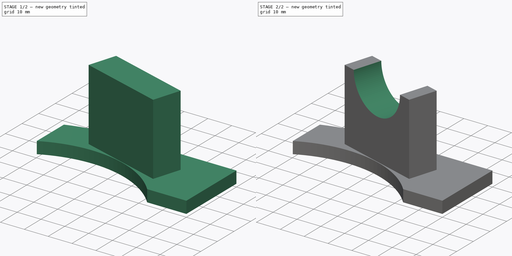
[diagram: build sequence overview — one tinted view per stage of 2, left to right]
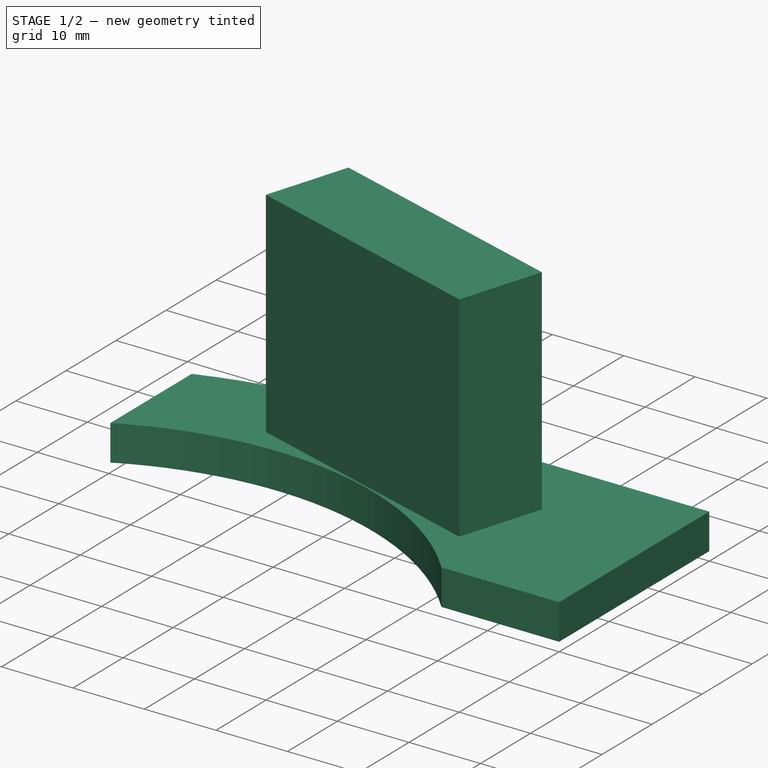
[diagram: stage 1 of 2 — iso view after this stage's code; geometry added in this stage tinted green]
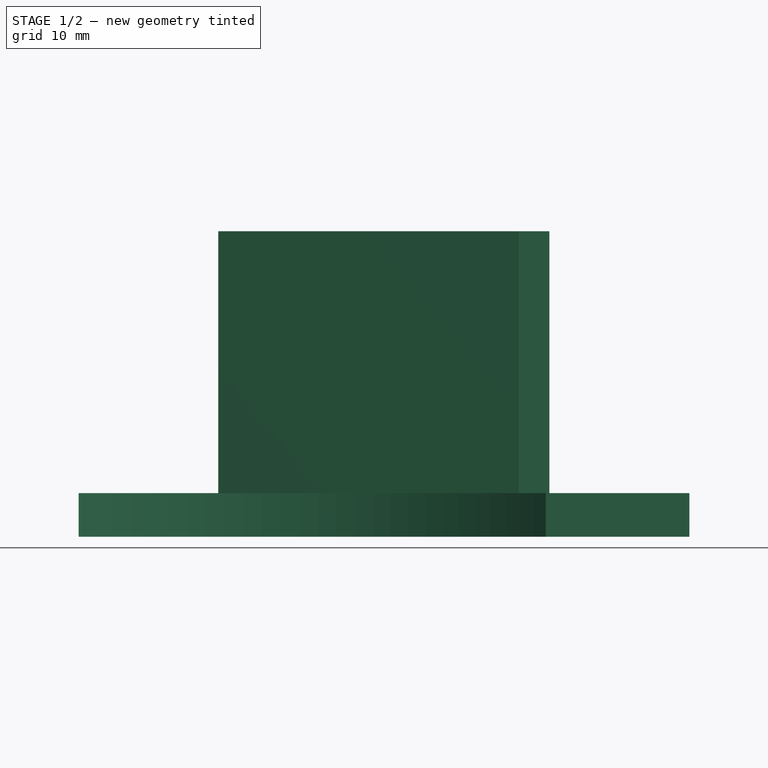
[diagram: stage 1 of 2 — front view after this stage's code; geometry added in this stage tinted green]
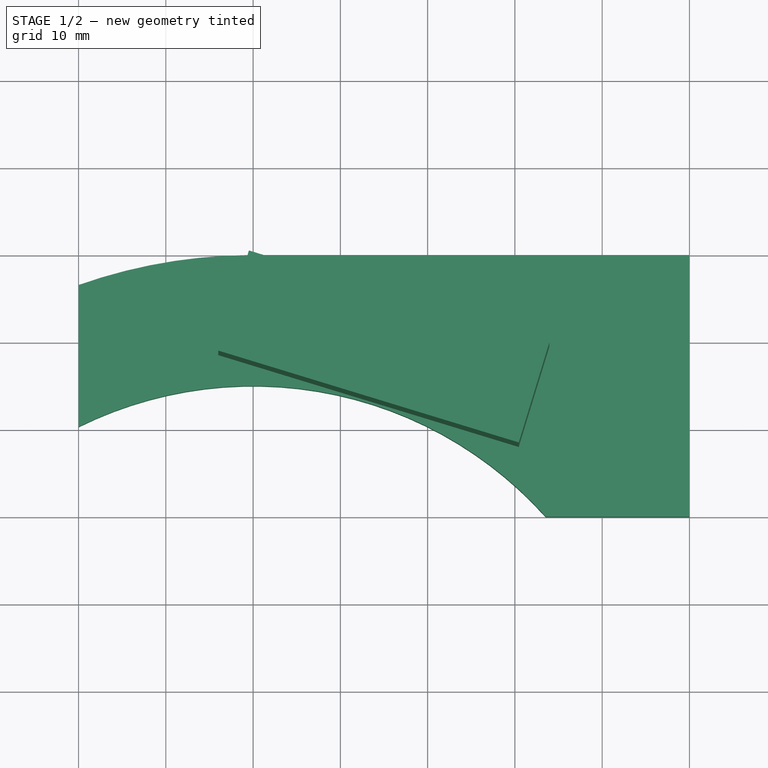
[diagram: stage 1 of 2 — top view after this stage's code; geometry added in this stage tinted green]
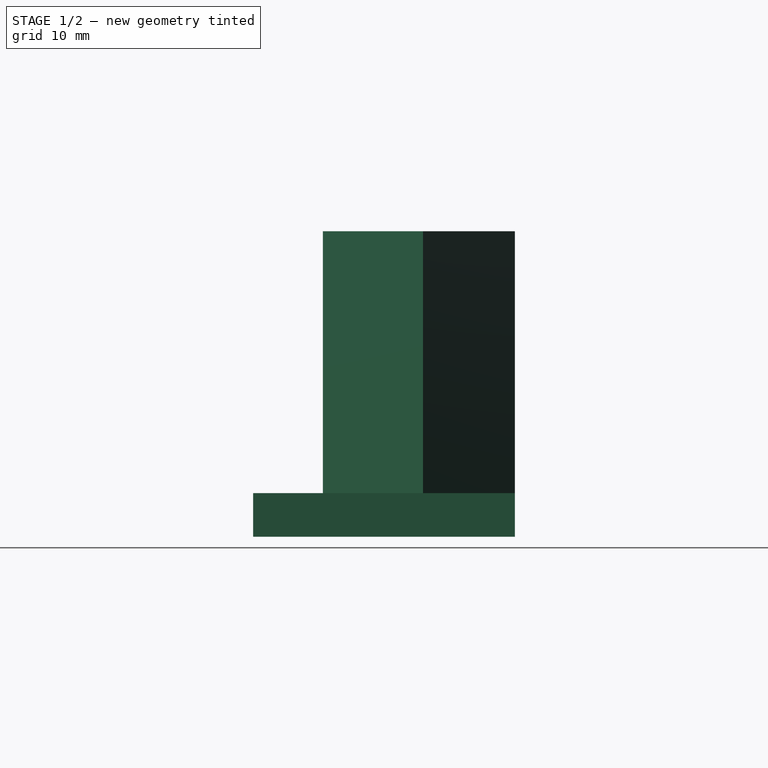
[diagram: stage 1 of 2 — right view after this stage's code; geometry added in this stage tinted green]
FCSTD DOCUMENT  (FreeCAD 0.16R)
Label: Guide1
License: All rights reserved
LicenseURL: http://en.wikipedia.org/wiki/All_rights_reserved
objects: Sketcher::SketchObject×3, PartDesign::Pad×2, PartDesign::Pocket×1
note: 9 computed .brp shape members not serialized (recipe doc carries the construction recipe); baked Part::Feature solids carry a one-line shape summary decoded from their .brp

FEATURE [Sketcher::SketchObject] Sketch
  sketch-geometry (10):
    g0: LineSegment [constr] StartX=0 StartY=0 StartZ=0 EndX=43.8558 EndY=143.446 EndZ=0
    g1: Circle [constr] CenterX=0 CenterY=0 CenterZ=0 NormalX=0 NormalY=0 NormalZ=1 Radius=55
    g2: LineSegment [constr] StartX=0 StartY=55 StartZ=0 EndX=150 EndY=55 EndZ=0
    g3: LineSegment StartX=33.541 StartY=30 StartZ=0 EndX=50 EndY=30 EndZ=0
    g4: Circle [constr] CenterX=0 CenterY=0 CenterZ=0 NormalX=0 NormalY=0 NormalZ=1 Radius=35.4
    g5: ArcOfCircle CenterX=0 CenterY=0 CenterZ=0 NormalX=0 NormalY=0 NormalZ=1 Radius=60 StartAngle=1.5708 EndAngle=1.91063
    g6: ArcOfCircle CenterX=0 CenterY=0 CenterZ=0 NormalX=0 NormalY=0 NormalZ=1 Radius=45 StartAngle=0.729728 EndAngle=2.03135
    g7: LineSegment StartX=50 StartY=30 StartZ=0 EndX=50 EndY=60 EndZ=0
    g8: LineSegment StartX=0 StartY=60 StartZ=0 EndX=50 EndY=60 EndZ=0
    g9: LineSegment StartX=-20 StartY=40.3113 StartZ=0 EndX=-20 EndY=56.5685 EndZ=0
  constraints (30):
    c: Coincident(g0,g-1)
    c: Distance(g0) = 150
    c: Angle(g0) = 1.27409
    c: Coincident(g1,g-1)
    c: Radius(g1) = 55
    c: Horizontal(g2)
    c: Horizontal(g3)
    c: Radius(g4) = 35.4
    c: Coincident(g4,g-1)
    c: Coincident(g5,g-1)
    c: Radius(g5) = 60
    c: Coincident(g6,g-1)
    c: Radius(g6) = 45
    c: Vertical(g7)
    c: PointOnObject(g8,g5)
    c: Coincident(g8,g7)
    c: Horizontal(g8)
    c: Coincident(g7,g3)
    c: Coincident(g6,g3)
    c: Coincident(g8,g5)
    c: Coincident(g9,g6)
    c: Coincident(g9,g5)
    c: Vertical(g9)
    c: DistanceX(g5,g-1) = 20
    c: DistanceX(g7) = 50
    c: Distance(g7) = 30
    c: PointOnObject(g5,g-2)
    c: Distance(g2) = 150
    c: PointOnObject(g2,g1)
    c: PointOnObject(g2,g-2)
FEATURE [PartDesign::Pad] Pad
  Length = 5
  Length2 = 100
  Sketch = -> Sketch
  Type = 0
FEATURE [Sketcher::SketchObject] Sketch001
  ExternalGeometry = -> [Pad]
  Placement = pos=(0,0,5) rot=(0,0,1;0rad)
  Support = -> Pad [Face8]
  sketch-geometry (5):
    g0: LineSegment [constr] StartX=0 StartY=0 StartZ=0 EndX=43.8558 EndY=143.446 EndZ=0
    g1: LineSegment StartX=-0.478611 StartY=60 StartZ=0 EndX=33.9484 EndY=49.4746 EndZ=0
    g2: LineSegment StartX=33.9484 StartY=49.4746 StartZ=0 EndX=30.4399 EndY=37.999 EndZ=0
    g3: LineSegment StartX=30.4399 StartY=37.999 StartZ=0 EndX=-3.98707 EndY=48.5243 EndZ=0
    g4: LineSegment StartX=-3.98707 StartY=48.5243 StartZ=0 EndX=-0.478611 EndY=60 EndZ=0
  constraints (15):
    c: Coincident(g0,g-1)
    c: Distance(g0) = 150
    c: Angle(g0) = 1.27409
    c: Coincident(g1,g2)
    c: Coincident(g2,g3)
    c: Coincident(g3,g4)
    c: Coincident(g4,g1)
    c: Perpendicular(g0,g3)
    c: Perpendicular(g0,g1)
    c: Parallel(g4,g0)
    c: Parallel(g2,g0)
    c: Symmetric(g2,g3,g0)
    c: Distance(g2) = 12
    c: PointOnObject(g1,g-3)
    c: Distance(g1) = 36
FEATURE [PartDesign::Pad] Pad001
  Length = 30
  Length2 = 100
  Sketch = -> Sketch001
  Type = 0
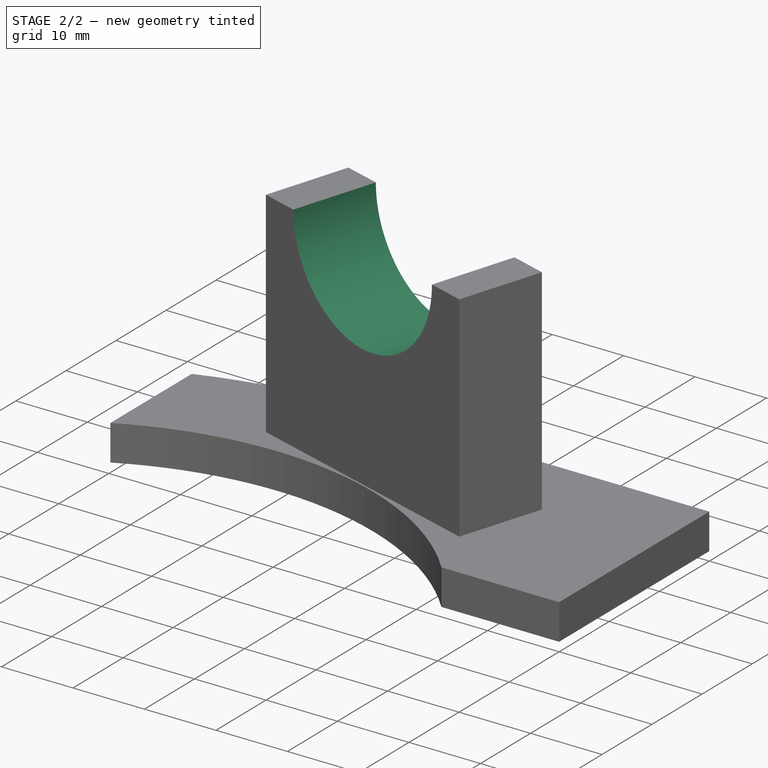
[diagram: stage 2 of 2 — iso view after this stage's code; geometry added in this stage tinted green]
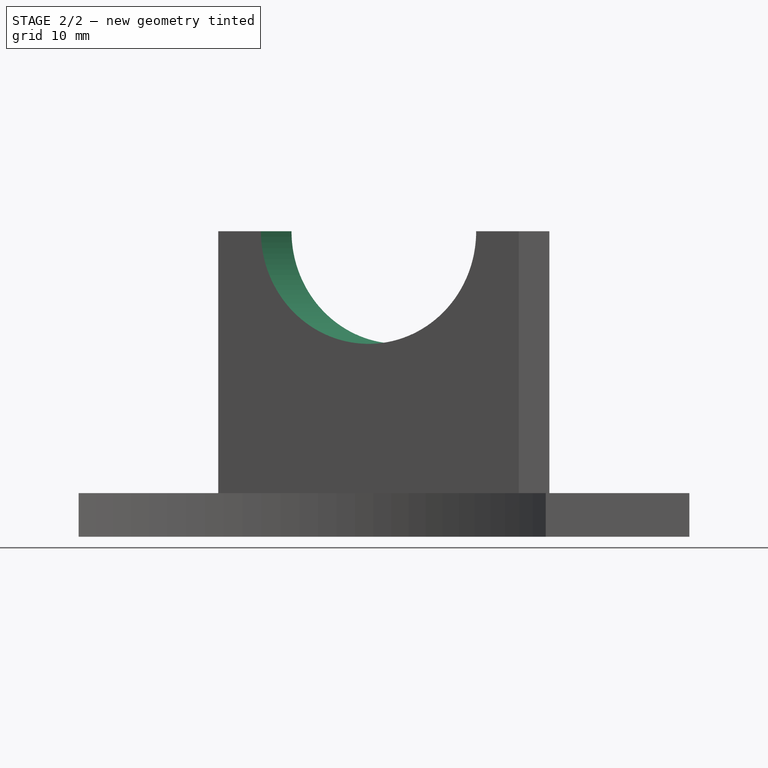
[diagram: stage 2 of 2 — front view after this stage's code; geometry added in this stage tinted green]
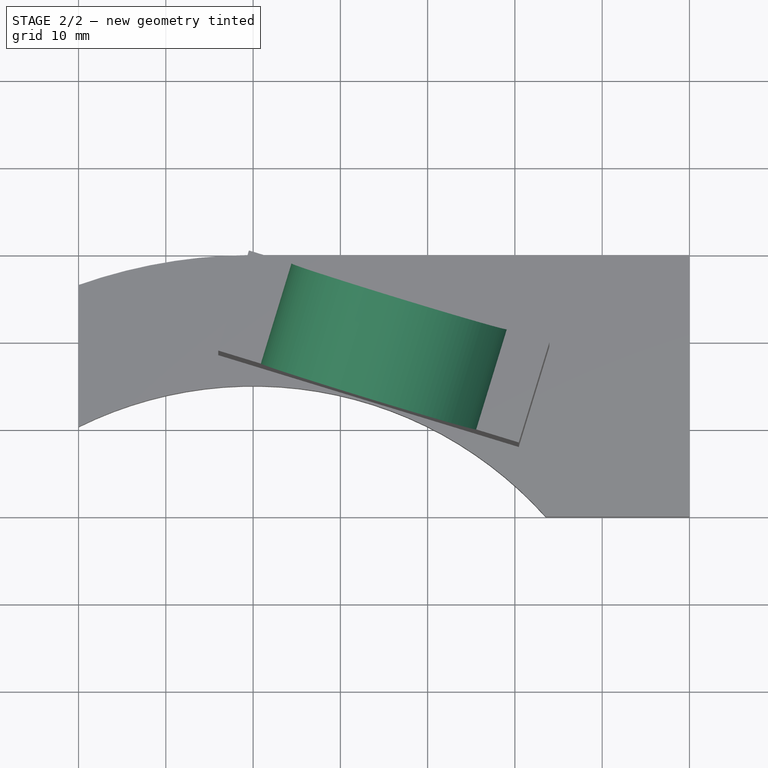
[diagram: stage 2 of 2 — top view after this stage's code; geometry added in this stage tinted green]
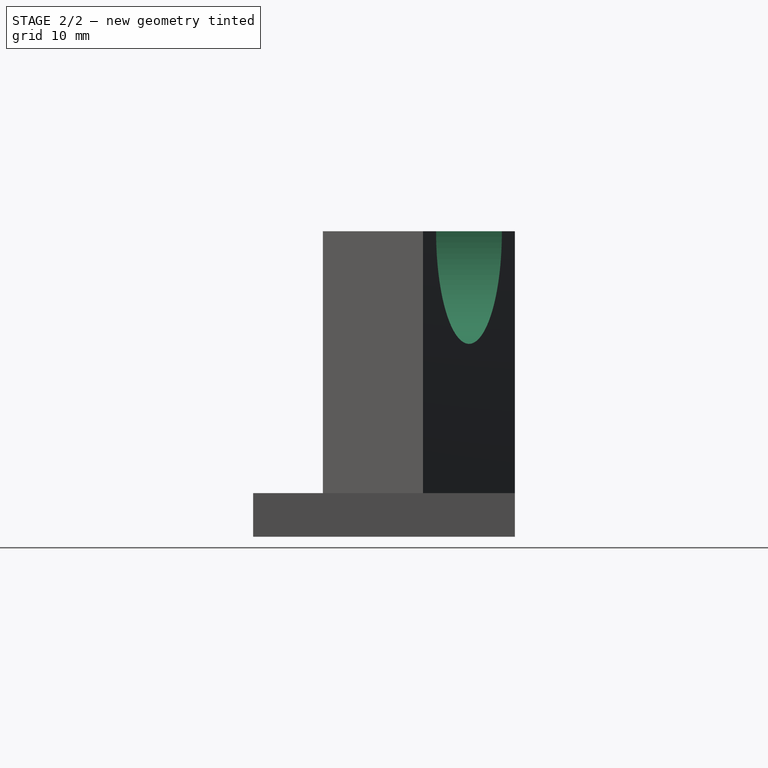
[diagram: stage 2 of 2 — right view after this stage's code; geometry added in this stage tinted green]
FEATURE [Sketcher::SketchObject] Sketch002
  ExternalGeometry = -> [Pad001]
  Placement = pos=(16.7349,54.7373,0) rot=(0.105093,0.703191,0.703191;2.93218rad)
  Support = -> Pad001 [Face12]
  sketch-geometry (1):
    g0: Circle CenterX=0 CenterY=35 CenterZ=0 NormalX=0 NormalY=0 NormalZ=1 Radius=12.9
  constraints (3):
    c: Radius(g0) = 12.9
    c: PointOnObject(g0,g-2)
    c: PointOnObject(g0,g-3)
FEATURE [PartDesign::Pocket] Pocket
  Length = 5
  Sketch = -> Sketch002
  Type = 1
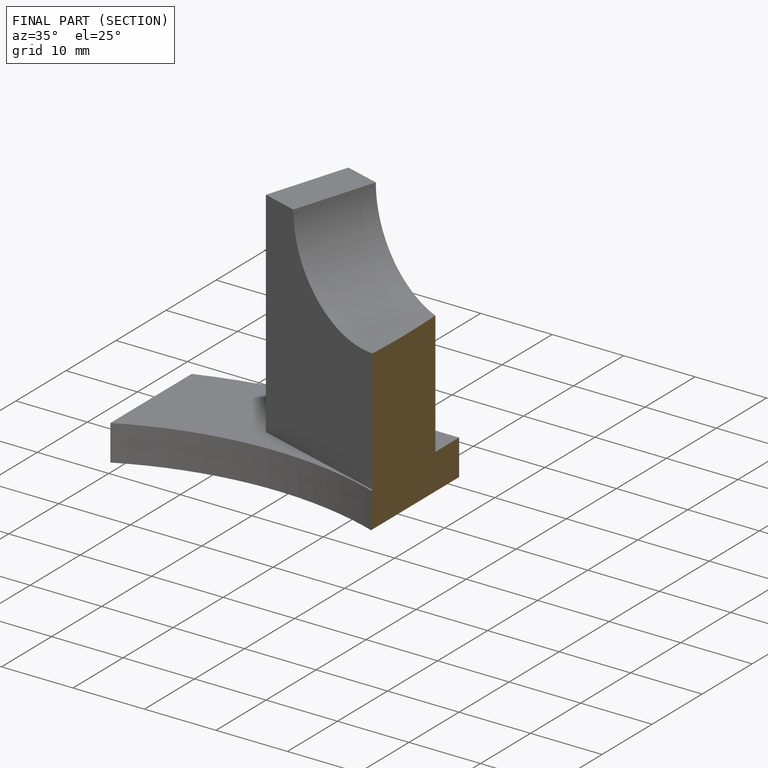
[diagram: finished part — half-section view (interior)]
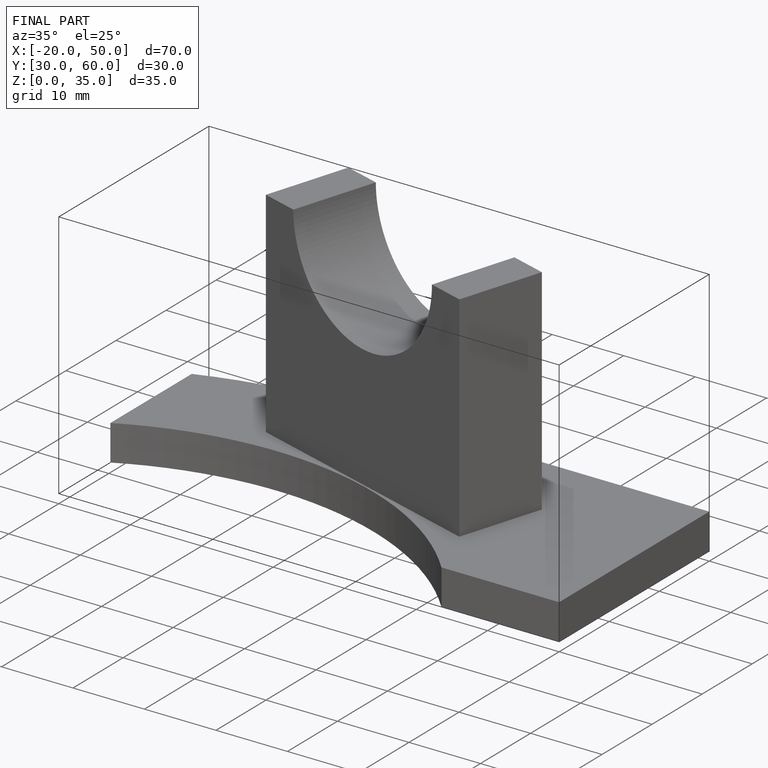
[diagram: finished part — iso view with bounding-box wireframe]
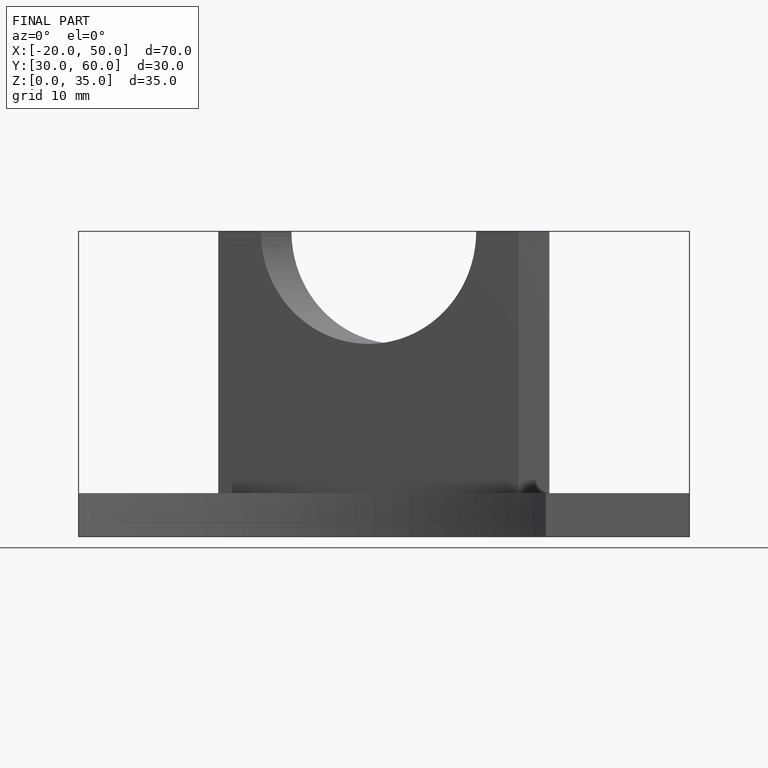
[diagram: finished part — front view with bounding-box wireframe]
